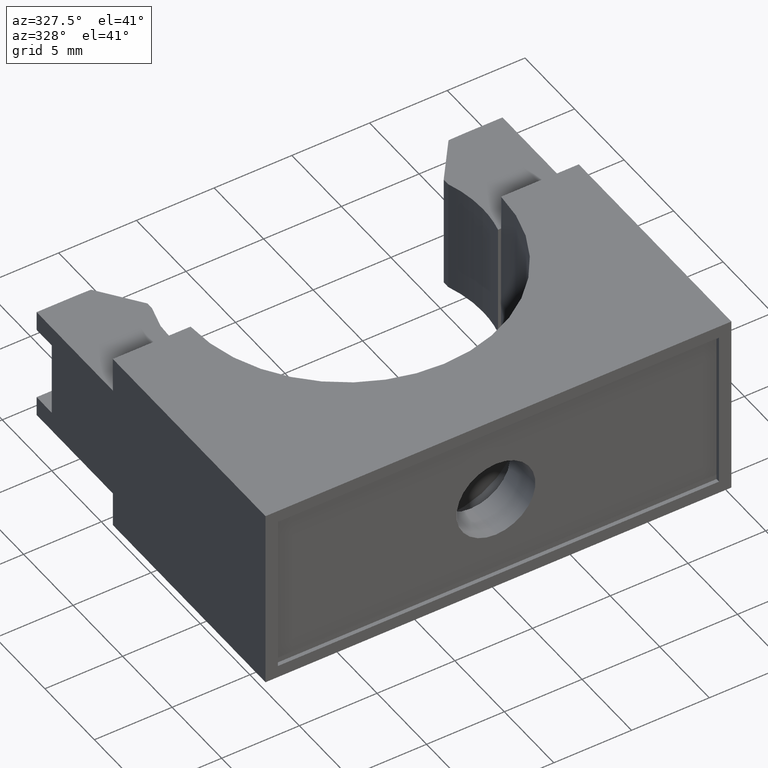
[diagram: clean part render]
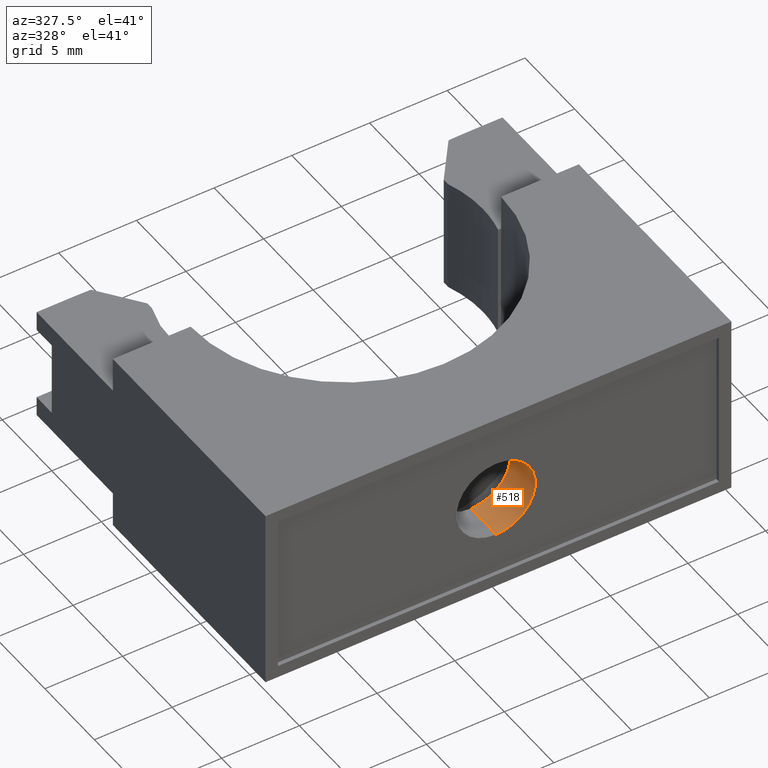
[diagram: same view with one face highlighted and labeled with its STEP entity id]
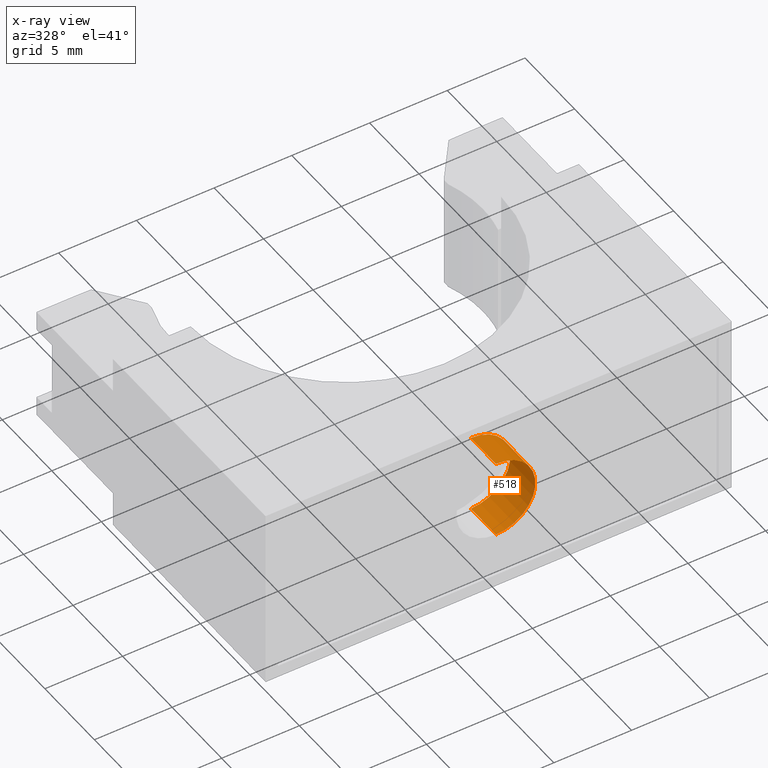
[diagram: x-ray of the same camera — body ghosted, the highlighted face saturated]
A machine part, auxiliary view. The second image highlights one B-rep face of the part: STEP entity #518.
The next image is the same camera in x-ray: the body ghosted, the highlighted face saturated — about 0% of this face is hidden behind the body in this view.
In plain terms, the highlighted cylindrical surface (partial cylindrical patch) has radius 2.54 mm, axis along (-0, 1, 0).
Its self-contained STEP definition (entity closure, byte-faithful):
#41 = VERTEX_POINT ( 'NONE', #745 ) ;
#52 = EDGE_CURVE ( 'NONE', #60, #65, #785, .T. ) ;
#60 = VERTEX_POINT ( 'NONE', #665 ) ;
#62 = EDGE_CURVE ( 'NONE', #41, #63, #664, .T. ) ;
#63 = VERTEX_POINT ( 'NONE', #660 ) ;
#65 = VERTEX_POINT ( 'NONE', #659 ) ;
#191 = EDGE_CURVE ( 'NONE', #60, #41, #826, .T. ) ;
#488 = EDGE_CURVE ( 'NONE', #65, #63, #1605, .T. ) ;
#518 = ADVANCED_FACE ( 'NONE', ( #1426 ), #1422, .F. ) ;
#519 = EDGE_LOOP ( 'NONE', ( #532, #533, #534, #535 ) ) ;
#532 = ORIENTED_EDGE ( 'NONE', *, *, #62, .F. ) ;
#533 = ORIENTED_EDGE ( 'NONE', *, *, #191, .F. ) ;
#534 = ORIENTED_EDGE ( 'NONE', *, *, #52, .T. ) ;
#535 = ORIENTED_EDGE ( 'NONE', *, *, #488, .T. ) ;
#659 = CARTESIAN_POINT ( 'NONE',  ( 0.0000000000000000000, -0.3449999999999995300, 0.3349999999999999600 ) ) ;
#660 = CARTESIAN_POINT ( 'NONE',  ( 1.224646799147353900E-017, -0.3449999999999995300, 0.1349999999999999000 ) ) ;
#661 = DIRECTION ( 'NONE',  ( -0.0000000000000000000, 1.000000000000000000, 7.639631403992348300E-017 ) ) ;
#662 = VECTOR ( 'NONE', #661, 39.37007874015748100 ) ;
#663 = CARTESIAN_POINT ( 'NONE',  ( 1.224646799147353700E-017, 1.645809676815583900E-017, 0.1349999999999999500 ) ) ;
#664 = LINE ( 'NONE', #663, #662 ) ;
#665 = CARTESIAN_POINT ( 'NONE',  ( 0.0000000000000000000, -0.4449999999999995600, 0.3349999999999999600 ) ) ;
#745 = CARTESIAN_POINT ( 'NONE',  ( 1.224646799147353700E-017, -0.4449999999999995600, 0.1349999999999999300 ) ) ;
#782 = DIRECTION ( 'NONE',  ( -0.0000000000000000000, 1.000000000000000000, 7.639631403992348300E-017 ) ) ;
#783 = VECTOR ( 'NONE', #782, 39.37007874015748100 ) ;
#784 = CARTESIAN_POINT ( 'NONE',  ( 0.0000000000000000000, 1.178833960171134700E-018, 0.3350000000000000200 ) ) ;
#785 = LINE ( 'NONE', #784, #783 ) ;
#818 = DIRECTION ( 'NONE',  ( 0.0000000000000000000, 0.0000000000000000000, 1.000000000000000000 ) ) ;
#819 = DIRECTION ( 'NONE',  ( -0.0000000000000000000, 1.000000000000000000, 7.639631403992348300E-017 ) ) ;
#820 = CARTESIAN_POINT ( 'NONE',  ( 0.0000000000000000000, -0.4449999999999995600, 0.2349999999999999600 ) ) ;
#821 = AXIS2_PLACEMENT_3D ( 'NONE', #820, #819, #818 ) ;
#826 = CIRCLE ( 'NONE', #821, 0.1000000000000000200 ) ;
#1422 = CYLINDRICAL_SURFACE ( 'NONE', #1459, 0.1000000000000000600 ) ;
#1426 = FACE_OUTER_BOUND ( 'NONE', #519, .T. ) ;
#1456 = DIRECTION ( 'NONE',  ( 0.0000000000000000000, -7.639631403992347100E-017, 1.000000000000000000 ) ) ;
#1457 = DIRECTION ( 'NONE',  ( -0.0000000000000000000, 1.000000000000000000, 7.639631403992348300E-017 ) ) ;
#1458 = CARTESIAN_POINT ( 'NONE',  ( 0.0000000000000000000, 8.818465364163486600E-018, 0.2349999999999999900 ) ) ;
#1459 = AXIS2_PLACEMENT_3D ( 'NONE', #1458, #1457, #1456 ) ;
#1601 = DIRECTION ( 'NONE',  ( 0.0000000000000000000, 0.0000000000000000000, 1.000000000000000000 ) ) ;
#1602 = DIRECTION ( 'NONE',  ( -0.0000000000000000000, 1.000000000000000000, 7.639631403992348300E-017 ) ) ;
#1603 = CARTESIAN_POINT ( 'NONE',  ( 0.0000000000000000000, -0.3449999999999995300, 0.2349999999999999600 ) ) ;
#1604 = AXIS2_PLACEMENT_3D ( 'NONE', #1603, #1602, #1601 ) ;
#1605 = CIRCLE ( 'NONE', #1604, 0.1000000000000000200 ) ;